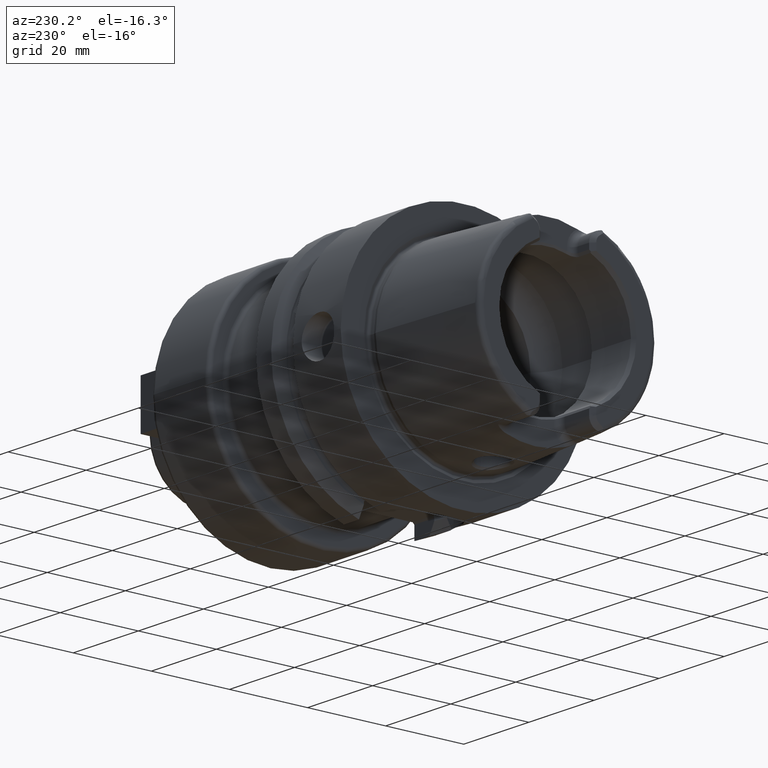
[diagram: clean part render]
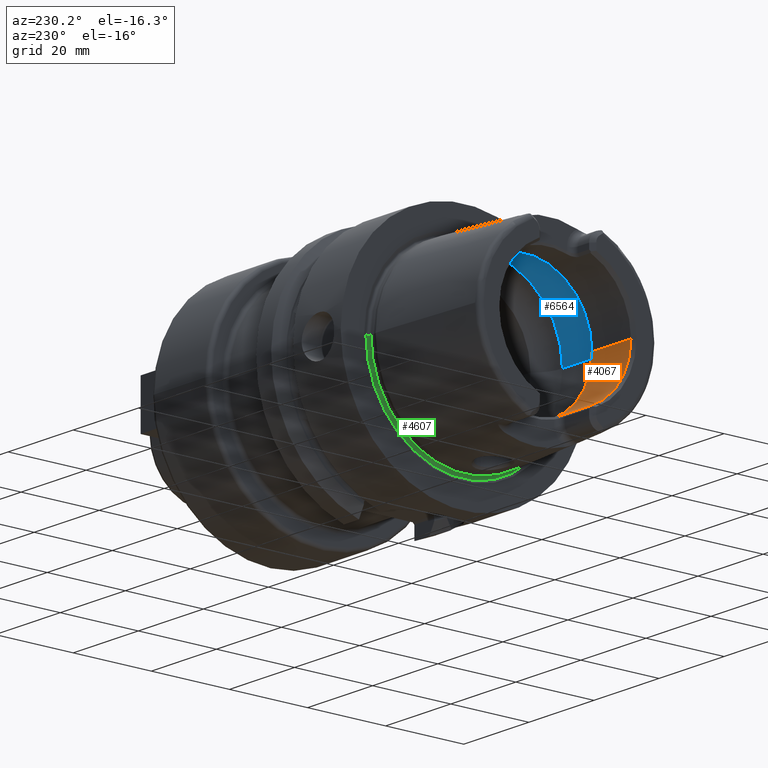
[diagram: same view with three faces highlighted in distinct colors, each labeled with its STEP entity id]
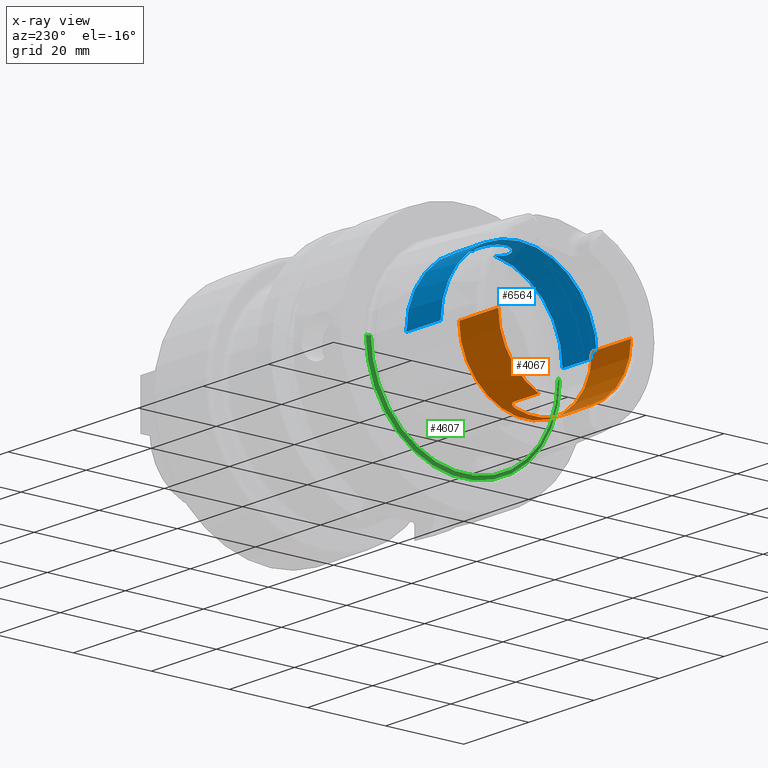
[diagram: x-ray of the same camera — body ghosted, the three highlighted faces saturated]
A machine part, auxiliary view with three faces highlighted in distinct colors.
The next image is the same camera in x-ray (body ghosted, the three faces saturated) — at least one of them is partly hidden behind the body in this view.
Their STEP definitions:

[orange] entity #4067 — the highlighted cylindrical surface (partial cylindrical patch) has radius 17 mm, axis along (1, 0, 0).
#367=CARTESIAN_POINT('',(-3.1E1,0.E0,0.E0));
#368=DIRECTION('',(-1.E0,0.E0,0.E0));
#369=DIRECTION('',(0.E0,1.E0,0.E0));
#370=AXIS2_PLACEMENT_3D('',#367,#368,#369);
#389=CARTESIAN_POINT('',(-3.1E1,0.E0,0.E0));
#390=DIRECTION('',(-1.E0,0.E0,0.E0));
#391=DIRECTION('',(0.E0,-3.910839598454E-1,-9.203550056102E-1));
#392=AXIS2_PLACEMENT_3D('',#389,#390,#391);
#617=DIRECTION('',(1.E0,0.E0,0.E0));
#618=VECTOR('',#617,7.5E0);
#619=CARTESIAN_POINT('',(-3.1E1,-6.648427317371E0,-1.564603509537E1));
#620=LINE('',#619,#618);
#621=CARTESIAN_POINT('',(-2.171132486541E1,-4.77E0,-1.631708000838E1));
#622=CARTESIAN_POINT('',(-2.170911463045E1,-4.851899929324E0,
-1.629313806150E1));
#623=CARTESIAN_POINT('',(-2.171539985496E1,-5.014300274441E0,
-1.624433189365E1));
#624=CARTESIAN_POINT('',(-2.175723226820E1,-5.255574737127E0,
-1.616786516493E1));
#625=CARTESIAN_POINT('',(-2.183019759937E1,-5.488813832187E0,
-1.609012650164E1));
#626=CARTESIAN_POINT('',(-2.193222755914E1,-5.709311810621E0,
-1.601314455534E1));
#627=CARTESIAN_POINT('',(-2.206208908479E1,-5.913640570765E0,
-1.593873381343E1));
#628=CARTESIAN_POINT('',(-2.221579663552E1,-6.097621457296E0,
-1.586916363348E1));
#629=CARTESIAN_POINT('',(-2.239004084082E1,-6.257927374534E0,
-1.580654307494E1));
#630=CARTESIAN_POINT('',(-2.258287946713E1,-6.394281114327E0,
-1.575179653388E1));
#631=CARTESIAN_POINT('',(-2.279414325254E1,-6.504885265694E0,
-1.570637036291E1));
#632=CARTESIAN_POINT('',(-2.302072491693E1,-6.586740689310E0,
-1.567215753589E1));
#633=CARTESIAN_POINT('',(-2.325841410654E1,-6.637201205541E0,
-1.565081274977E1));
#634=CARTESIAN_POINT('',(-2.341884128981E1,-6.648427317371E0,
-1.564603509537E1));
#635=CARTESIAN_POINT('',(-2.35E1,-6.648427317371E0,-1.564603509537E1));
#637=CARTESIAN_POINT('',(-2.171132486541E1,4.77E0,-1.631708000838E1));
#638=CARTESIAN_POINT('',(-2.171132486541E1,4.151241293882E0,-1.649796280277E1));
#639=CARTESIAN_POINT('',(-2.171132889067E1,2.893125957956E0,-1.678926713017E1));
#640=CARTESIAN_POINT('',(-2.171132738120E1,9.685489423330E-1,
-1.700915920873E1));
#641=CARTESIAN_POINT('',(-2.171132738120E1,-9.685489423330E-1,
-1.700915920873E1));
#642=CARTESIAN_POINT('',(-2.171132889067E1,-2.893125957956E0,
-1.678926713017E1));
#643=CARTESIAN_POINT('',(-2.171132486541E1,-4.151241293883E0,
-1.649796280277E1));
#644=CARTESIAN_POINT('',(-2.171132486541E1,-4.77E0,-1.631708000838E1));
#646=CARTESIAN_POINT('',(-2.35E1,6.648427317371E0,-1.564603509537E1));
#647=CARTESIAN_POINT('',(-2.341886739757E1,6.648427317371E0,-1.564603509537E1));
#648=CARTESIAN_POINT('',(-2.325846026145E1,6.637216591931E0,-1.565080624648E1));
#649=CARTESIAN_POINT('',(-2.302047669465E1,6.586680175792E0,-1.567218311946E1));
#650=CARTESIAN_POINT('',(-2.279396033382E1,6.504789416100E0,-1.570640995358E1));
#651=CARTESIAN_POINT('',(-2.258322850975E1,6.394447887182E0,-1.575172726773E1));
#652=CARTESIAN_POINT('',(-2.239118887217E1,6.258799446743E0,-1.580619508840E1));
#653=CARTESIAN_POINT('',(-2.221738949273E1,6.099242016697E0,-1.586853752436E1));
#654=CARTESIAN_POINT('',(-2.206384631874E1,5.916012648985E0,-1.593785105703E1));
#655=CARTESIAN_POINT('',(-2.193366664869E1,5.711955003317E0,-1.601220141386E1));
#656=CARTESIAN_POINT('',(-2.183107108488E1,5.491206341111E0,-1.608931480424E1));
#657=CARTESIAN_POINT('',(-2.175746962839E1,5.256749499660E0,-1.616748882623E1));
#658=CARTESIAN_POINT('',(-2.171543732099E1,5.014873021211E0,-1.624415783103E1));
#659=CARTESIAN_POINT('',(-2.170911008721E1,4.852068278437E0,-1.629308884771E1));
#660=CARTESIAN_POINT('',(-2.171132486541E1,4.77E0,-1.631708000838E1));
#662=DIRECTION('',(1.E0,0.E0,0.E0));
#663=VECTOR('',#662,7.5E0);
#664=CARTESIAN_POINT('',(-3.1E1,6.648427317371E0,-1.564603509537E1));
#665=LINE('',#664,#663);
#666=DIRECTION('',(-1.E0,0.E0,0.E0));
#667=VECTOR('',#666,1.200397459622E1);
#668=CARTESIAN_POINT('',(-1.899602540378E1,1.7E1,0.E0));
#669=LINE('',#668,#667);
#670=CARTESIAN_POINT('',(-1.899602540378E1,0.E0,0.E0));
#671=DIRECTION('',(-1.E0,0.E0,0.E0));
#672=DIRECTION('',(0.E0,1.E0,0.E0));
#673=AXIS2_PLACEMENT_3D('',#670,#671,#672);
#675=DIRECTION('',(-1.E0,0.E0,0.E0));
#676=VECTOR('',#675,1.200397459622E1);
#677=CARTESIAN_POINT('',(-1.899602540378E1,-1.7E1,0.E0));
#678=LINE('',#677,#676);
#2901=CARTESIAN_POINT('',(-1.899602540378E1,1.7E1,0.E0));
#2902=VERTEX_POINT('',#2901);
#2903=CARTESIAN_POINT('',(-3.1E1,1.7E1,0.E0));
#2904=VERTEX_POINT('',#2903);
#2913=CARTESIAN_POINT('',(-1.899602540378E1,-1.7E1,0.E0));
#2914=VERTEX_POINT('',#2913);
#2915=CARTESIAN_POINT('',(-3.1E1,-1.7E1,0.E0));
#2916=VERTEX_POINT('',#2915);
#3028=CARTESIAN_POINT('',(-2.35E1,-6.648427317371E0,-1.564603509537E1));
#3029=VERTEX_POINT('',#3028);
#3030=CARTESIAN_POINT('',(-2.171132486541E1,-4.77E0,-1.631708000838E1));
#3031=VERTEX_POINT('',#3030);
#3032=CARTESIAN_POINT('',(-2.35E1,6.648427317371E0,-1.564603509537E1));
#3033=VERTEX_POINT('',#3032);
#3034=CARTESIAN_POINT('',(-2.171132486541E1,4.77E0,-1.631708000838E1));
#3035=VERTEX_POINT('',#3034);
#3036=CARTESIAN_POINT('',(-3.1E1,-6.648427317371E0,-1.564603509537E1));
#3037=VERTEX_POINT('',#3036);
#3038=CARTESIAN_POINT('',(-3.1E1,6.648427317371E0,-1.564603509537E1));
#3039=VERTEX_POINT('',#3038);
#4044=CARTESIAN_POINT('',(-3.41E1,0.E0,0.E0));
#4045=DIRECTION('',(1.E0,0.E0,0.E0));
#4046=DIRECTION('',(0.E0,-1.E0,0.E0));
#4047=AXIS2_PLACEMENT_3D('',#4044,#4045,#4046);
#4048=CYLINDRICAL_SURFACE('',#4047,1.7E1);
#4050=ORIENTED_EDGE('',*,*,#4049,.T.);
#4052=ORIENTED_EDGE('',*,*,#4051,.F.);
#4054=ORIENTED_EDGE('',*,*,#4053,.F.);
#4056=ORIENTED_EDGE('',*,*,#4055,.F.);
#4058=ORIENTED_EDGE('',*,*,#4057,.F.);
#4059=ORIENTED_EDGE('',*,*,#3654,.F.);
#4060=ORIENTED_EDGE('',*,*,#3986,.F.);
#4062=ORIENTED_EDGE('',*,*,#4061,.T.);
#4063=ORIENTED_EDGE('',*,*,#3982,.T.);
#4064=ORIENTED_EDGE('',*,*,#3670,.F.);
#4065=EDGE_LOOP('',(#4050,#4052,#4054,#4056,#4058,#4059,#4060,#4062,#4063,
#4064));
#4066=FACE_OUTER_BOUND('',#4065,.F.);
#4067=ADVANCED_FACE('',(#4066),#4048,.F.);
#371=CIRCLE('',#370,1.7E1);
#393=CIRCLE('',#392,1.7E1);
#636=B_SPLINE_CURVE_WITH_KNOTS('',3,(#621,#622,#623,#624,#625,#626,#627,#628,
#629,#630,#631,#632,#633,#634,#635),.UNSPECIFIED.,.F.,.F.,(4,1,1,1,1,1,1,1,1,1,
1,1,4),(0.E0,8.333333333333E-2,1.666666666667E-1,2.5E-1,3.333333333333E-1,
4.166666666667E-1,5.E-1,5.833333333333E-1,6.666666666667E-1,7.5E-1,
8.333333333333E-1,9.166666666667E-1,1.E0),.UNSPECIFIED.);
#645=B_SPLINE_CURVE_WITH_KNOTS('',3,(#637,#638,#639,#640,#641,#642,#643,#644),
.UNSPECIFIED.,.F.,.F.,(4,1,1,1,1,4),(0.E0,2.E-1,4.E-1,6.E-1,8.E-1,1.E0),
.UNSPECIFIED.);
#661=B_SPLINE_CURVE_WITH_KNOTS('',3,(#646,#647,#648,#649,#650,#651,#652,#653,
#654,#655,#656,#657,#658,#659,#660),.UNSPECIFIED.,.F.,.F.,(4,1,1,1,1,1,1,1,1,1,
1,1,4),(0.E0,8.333333333333E-2,1.666666666667E-1,2.5E-1,3.333333333333E-1,
4.166666666667E-1,5.E-1,5.833333333333E-1,6.666666666667E-1,7.5E-1,
8.333333333333E-1,9.166666666667E-1,1.E0),.UNSPECIFIED.);
#674=CIRCLE('',#673,1.7E1);
#3654=EDGE_CURVE('',#2904,#3039,#371,.T.);
#3670=EDGE_CURVE('',#3037,#2916,#393,.T.);
#3982=EDGE_CURVE('',#2914,#2916,#678,.T.);
#3986=EDGE_CURVE('',#2902,#2904,#669,.T.);
#4049=EDGE_CURVE('',#3037,#3029,#620,.T.);
#4051=EDGE_CURVE('',#3031,#3029,#636,.T.);
#4053=EDGE_CURVE('',#3035,#3031,#645,.T.);
#4055=EDGE_CURVE('',#3033,#3035,#661,.T.);
#4057=EDGE_CURVE('',#3039,#3033,#665,.T.);
#4061=EDGE_CURVE('',#2902,#2914,#674,.T.);

[blue] entity #6564 — the highlighted cylindrical surface (partial cylindrical patch) has radius 20 mm, axis along (1, 0, 0).
#2479=CARTESIAN_POINT('',(-6.344997998398E0,2.648294615690E0,1.982388800484E1));
#2481=CARTESIAN_POINT('',(-6.344997998398E0,-2.648294615690E0,
1.982388800484E1));
#2496=CARTESIAN_POINT('',(-6.344997998398E0,2.648294615690E0,1.982388800484E1));
#2497=CARTESIAN_POINT('',(-6.460596585787E0,2.764185981810E0,1.980840595204E1));
#2498=CARTESIAN_POINT('',(-6.705032526468E0,2.979236620594E0,1.977762997767E1));
#2499=CARTESIAN_POINT('',(-7.115707088008E0,3.254820950558E0,1.973390915713E1));
#2500=CARTESIAN_POINT('',(-7.558788067840E0,3.473550756710E0,1.969635481023E1));
#2501=CARTESIAN_POINT('',(-8.021221245910E0,3.630990626018E0,1.966777323779E1));
#2502=CARTESIAN_POINT('',(-8.506803393416E0,3.728808889512E0,1.964936004927E1));
#2503=CARTESIAN_POINT('',(-9.030555145845E0,3.763361449459E0,1.964272649975E1));
#2504=CARTESIAN_POINT('',(-9.606429583869E0,3.716513314942E0,1.965172145674E1));
#2505=CARTESIAN_POINT('',(-1.018737071400E1,3.573599882894E0,1.967844261791E1));
#2506=CARTESIAN_POINT('',(-1.073043578591E1,3.344031986540E0,1.971908086237E1));
#2507=CARTESIAN_POINT('',(-1.122924164708E1,3.034476069484E0,1.976949853857E1));
#2508=CARTESIAN_POINT('',(-1.167539523054E1,2.649612593318E0,1.982521182701E1));
#2509=CARTESIAN_POINT('',(-1.205589435788E1,2.199789113726E0,1.988058991308E1));
#2510=CARTESIAN_POINT('',(-1.236037157112E1,1.698335126266E0,1.993006117584E1));
#2511=CARTESIAN_POINT('',(-1.258308722480E1,1.156984185320E0,1.996912477874E1));
#2512=CARTESIAN_POINT('',(-1.271933931783E1,5.855799559107E-1,
1.999421727083E1));
#2513=CARTESIAN_POINT('',(-1.275E1,1.970790591689E-1,2.E1));
#2514=CARTESIAN_POINT('',(-1.275E1,0.E0,2.E1));
#2516=CARTESIAN_POINT('',(-6.344997998398E0,0.E0,0.E0));
#2517=DIRECTION('',(1.E0,0.E0,0.E0));
#2518=DIRECTION('',(0.E0,1.E0,0.E0));
#2519=AXIS2_PLACEMENT_3D('',#2516,#2517,#2518);
#2521=CARTESIAN_POINT('',(-6.344997998398E0,0.E0,0.E0));
#2522=DIRECTION('',(1.E0,0.E0,0.E0));
#2523=DIRECTION('',(0.E0,-1.324147307845E-1,9.911944002421E-1));
#2524=AXIS2_PLACEMENT_3D('',#2521,#2522,#2523);
#2526=CARTESIAN_POINT('',(-1.275E1,0.E0,2.E1));
#2527=CARTESIAN_POINT('',(-1.275E1,-1.955242925513E-1,2.E1));
#2528=CARTESIAN_POINT('',(-1.271982051521E1,-5.810761079055E-1,
1.999430841785E1));
#2529=CARTESIAN_POINT('',(-1.258557303883E1,-1.148512219472E0,
1.996957850985E1));
#2530=CARTESIAN_POINT('',(-1.236610647030E1,-1.686465533352E0,
1.993104432949E1));
#2531=CARTESIAN_POINT('',(-1.206568486343E1,-2.185767805005E0,
1.988212273505E1));
#2532=CARTESIAN_POINT('',(-1.169008850873E1,-2.634407568635E0,
1.982723415069E1));
#2533=CARTESIAN_POINT('',(-1.124927195009E1,-3.019358385751E0,
1.977181562270E1));
#2534=CARTESIAN_POINT('',(-1.075709032709E1,-3.329824405020E0,
1.972149412598E1));
#2535=CARTESIAN_POINT('',(-1.021949126442E1,-3.562609701439E0,
1.968045031109E1));
#2536=CARTESIAN_POINT('',(-9.641467361370E0,-3.710631949485E0,
1.965284251435E1));
#2537=CARTESIAN_POINT('',(-9.064366496245E0,-3.763073985501E0,
1.964278184632E1));
#2538=CARTESIAN_POINT('',(-8.536701772833E0,-3.732854425270E0,
1.964858745769E1));
#2539=CARTESIAN_POINT('',(-8.044881233754E0,-3.637565201588E0,
1.966655458906E1));
#2540=CARTESIAN_POINT('',(-7.575563176507E0,-3.480761658208E0,
1.969508217317E1));
#2541=CARTESIAN_POINT('',(-7.126022383363E0,-3.261082066667E0,
1.973288259674E1));
#2542=CARTESIAN_POINT('',(-6.709667549471E0,-2.983130387452E0,
1.977705858332E1));
#2543=CARTESIAN_POINT('',(-6.462043566692E0,-2.765636627510E0,
1.980821215871E1));
#2544=CARTESIAN_POINT('',(-6.344997998398E0,-2.648294615690E0,
1.982388800484E1));
#2591=DIRECTION('',(-1.E0,0.E0,0.E0));
#2592=VECTOR('',#2591,1.057256643630E1);
#2593=CARTESIAN_POINT('',(-6.344997998398E0,-2.E1,0.E0));
#2594=LINE('',#2593,#2592);
#2595=DIRECTION('',(-1.E0,0.E0,0.E0));
#2596=VECTOR('',#2595,1.057256643630E1);
#2597=CARTESIAN_POINT('',(-6.344997998398E0,2.E1,0.E0));
#2598=LINE('',#2597,#2596);
#2830=CARTESIAN_POINT('',(-1.691756443470E1,0.E0,0.E0));
#2831=DIRECTION('',(1.E0,0.E0,0.E0));
#2832=DIRECTION('',(0.E0,1.E0,0.E0));
#2833=AXIS2_PLACEMENT_3D('',#2830,#2831,#2832);
#2895=CARTESIAN_POINT('',(-6.344997998398E0,2.E1,0.E0));
#2896=VERTEX_POINT('',#2895);
#2897=CARTESIAN_POINT('',(-1.691756443470E1,2.E1,0.E0));
#2898=VERTEX_POINT('',#2897);
#2907=CARTESIAN_POINT('',(-6.344997998398E0,-2.E1,0.E0));
#2908=VERTEX_POINT('',#2907);
#2909=CARTESIAN_POINT('',(-1.691756443470E1,-2.E1,0.E0));
#2910=VERTEX_POINT('',#2909);
#3077=VERTEX_POINT('',#2479);
#3078=VERTEX_POINT('',#2481);
#3079=VERTEX_POINT('',#2514);
#6547=CARTESIAN_POINT('',(-3.41E1,0.E0,0.E0));
#6548=DIRECTION('',(1.E0,0.E0,0.E0));
#6549=DIRECTION('',(0.E0,-1.E0,0.E0));
#6550=AXIS2_PLACEMENT_3D('',#6547,#6548,#6549);
#6551=CYLINDRICAL_SURFACE('',#6550,2.E1);
#6552=ORIENTED_EDGE('',*,*,#6506,.F.);
#6553=ORIENTED_EDGE('',*,*,#6542,.F.);
#6555=ORIENTED_EDGE('',*,*,#6554,.T.);
#6557=ORIENTED_EDGE('',*,*,#6556,.T.);
#6559=ORIENTED_EDGE('',*,*,#6558,.F.);
#6560=ORIENTED_EDGE('',*,*,#6534,.F.);
#6561=ORIENTED_EDGE('',*,*,#6268,.F.);
#6562=EDGE_LOOP('',(#6552,#6553,#6555,#6557,#6559,#6560,#6561));
#6563=FACE_OUTER_BOUND('',#6562,.F.);
#6564=ADVANCED_FACE('',(#6563),#6551,.F.);
#2515=B_SPLINE_CURVE_WITH_KNOTS('',3,(#2496,#2497,#2498,#2499,#2500,#2501,#2502,
#2503,#2504,#2505,#2506,#2507,#2508,#2509,#2510,#2511,#2512,#2513,#2514),
.UNSPECIFIED.,.F.,.F.,(4,1,1,1,1,1,1,1,1,1,1,1,1,1,1,1,4),(0.E0,6.25E-2,1.25E-1,
1.875E-1,2.5E-1,3.125E-1,3.75E-1,4.375E-1,5.E-1,5.625E-1,6.25E-1,6.875E-1,
7.5E-1,8.125E-1,8.75E-1,9.375E-1,1.E0),.UNSPECIFIED.);
#2520=CIRCLE('',#2519,2.E1);
#2525=CIRCLE('',#2524,2.E1);
#2545=B_SPLINE_CURVE_WITH_KNOTS('',3,(#2526,#2527,#2528,#2529,#2530,#2531,#2532,
#2533,#2534,#2535,#2536,#2537,#2538,#2539,#2540,#2541,#2542,#2543,#2544),
.UNSPECIFIED.,.F.,.F.,(4,1,1,1,1,1,1,1,1,1,1,1,1,1,1,1,4),(0.E0,6.25E-2,1.25E-1,
1.875E-1,2.5E-1,3.125E-1,3.75E-1,4.375E-1,5.E-1,5.625E-1,6.25E-1,6.875E-1,
7.5E-1,8.125E-1,8.75E-1,9.375E-1,1.E0),.UNSPECIFIED.);
#2834=CIRCLE('',#2833,2.E1);
#6268=EDGE_CURVE('',#3079,#3078,#2545,.T.);
#6506=EDGE_CURVE('',#3077,#3079,#2515,.T.);
#6534=EDGE_CURVE('',#3078,#2908,#2525,.T.);
#6542=EDGE_CURVE('',#2896,#3077,#2520,.T.);
#6554=EDGE_CURVE('',#2896,#2898,#2598,.T.);
#6556=EDGE_CURVE('',#2898,#2910,#2834,.T.);
#6558=EDGE_CURVE('',#2908,#2910,#2594,.T.);

[green] entity #4607 — the highlighted toroidal blend (fillet) surface has major radius 24.6204 mm and minor (blend) radius 0.6 mm.
#1030=CARTESIAN_POINT('',(-3.021696305237E-1,0.E0,0.E0));
#1031=DIRECTION('',(-1.E0,0.E0,0.E0));
#1032=DIRECTION('',(0.E0,1.E0,0.E0));
#1033=AXIS2_PLACEMENT_3D('',#1030,#1031,#1032);
#1045=CARTESIAN_POINT('',(-3.021696305237E-1,2.462042414966E1,0.E0));
#1046=DIRECTION('',(0.E0,0.E0,-1.E0));
#1047=DIRECTION('',(9.304175679820E-1,3.665012267243E-1,0.E0));
#1048=AXIS2_PLACEMENT_3D('',#1045,#1046,#1047);
#1050=CARTESIAN_POINT('',(-3.021696305237E-1,-2.462042414966E1,0.E0));
#1051=DIRECTION('',(0.E0,0.E0,1.E0));
#1052=DIRECTION('',(9.304175679820E-1,-3.665012267243E-1,0.E0));
#1053=AXIS2_PLACEMENT_3D('',#1050,#1051,#1052);
#1055=CARTESIAN_POINT('',(2.560809102655E-1,0.E0,0.E0));
#1056=DIRECTION('',(-1.E0,0.E0,0.E0));
#1057=DIRECTION('',(0.E0,1.E0,0.E0));
#1058=AXIS2_PLACEMENT_3D('',#1055,#1056,#1057);
#2857=CARTESIAN_POINT('',(2.560809102655E-1,-2.484032488569E1,0.E0));
#2858=CARTESIAN_POINT('',(-3.021696305237E-1,-2.402042414966E1,0.E0));
#2859=VERTEX_POINT('',#2857);
#2860=VERTEX_POINT('',#2858);
#2865=CARTESIAN_POINT('',(2.560809102655E-1,2.484032488569E1,0.E0));
#2866=CARTESIAN_POINT('',(-3.021696305237E-1,2.402042414966E1,0.E0));
#2867=VERTEX_POINT('',#2865);
#2868=VERTEX_POINT('',#2866);
#4595=CARTESIAN_POINT('',(-3.021696305237E-1,0.E0,0.E0));
#4596=DIRECTION('',(-1.E0,0.E0,0.E0));
#4597=DIRECTION('',(0.E0,-1.E0,0.E0));
#4598=AXIS2_PLACEMENT_3D('',#4595,#4596,#4597);
#4599=TOROIDAL_SURFACE('',#4598,2.462042414966E1,6.E-1);
#4600=ORIENTED_EDGE('',*,*,#4588,.T.);
#4601=ORIENTED_EDGE('',*,*,#4562,.T.);
#4602=ORIENTED_EDGE('',*,*,#4585,.F.);
#4604=ORIENTED_EDGE('',*,*,#4603,.F.);
#4605=EDGE_LOOP('',(#4600,#4601,#4602,#4604));
#4606=FACE_OUTER_BOUND('',#4605,.F.);
#4607=ADVANCED_FACE('',(#4606),#4599,.F.);
#1034=CIRCLE('',#1033,2.402042414966E1);
#1049=CIRCLE('',#1048,6.E-1);
#1054=CIRCLE('',#1053,6.E-1);
#1059=CIRCLE('',#1058,2.484032488569E1);
#4562=EDGE_CURVE('',#2868,#2860,#1034,.T.);
#4585=EDGE_CURVE('',#2859,#2860,#1054,.T.);
#4588=EDGE_CURVE('',#2867,#2868,#1049,.T.);
#4603=EDGE_CURVE('',#2867,#2859,#1059,.T.);